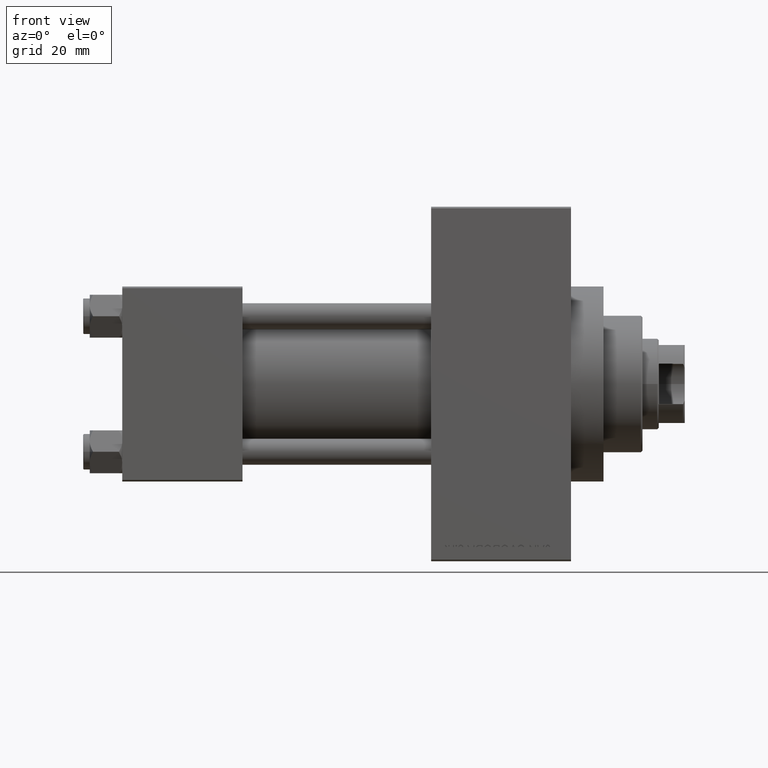
[diagram: clean part render]
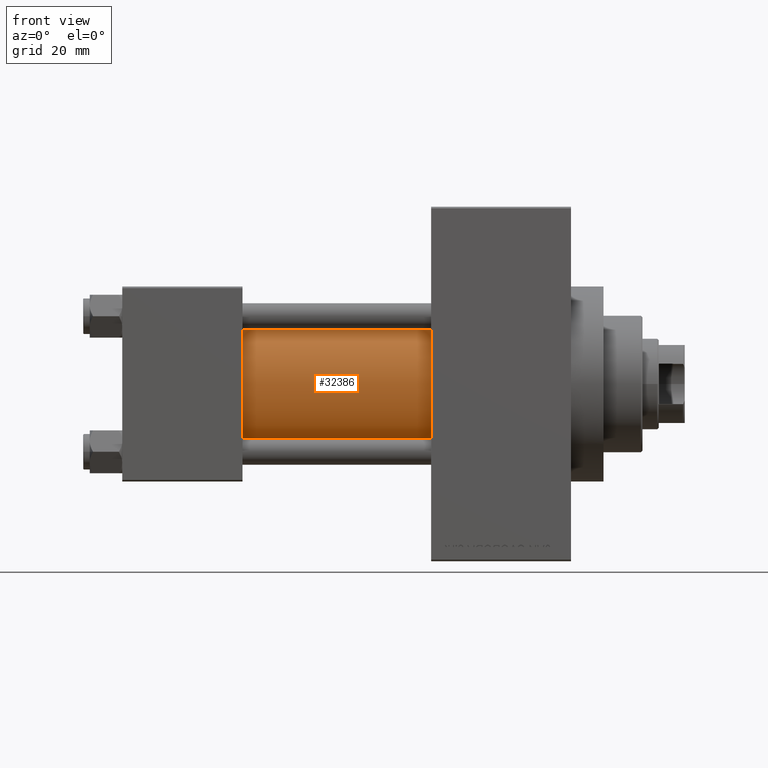
[diagram: same view with one face highlighted and labeled with its STEP entity id]
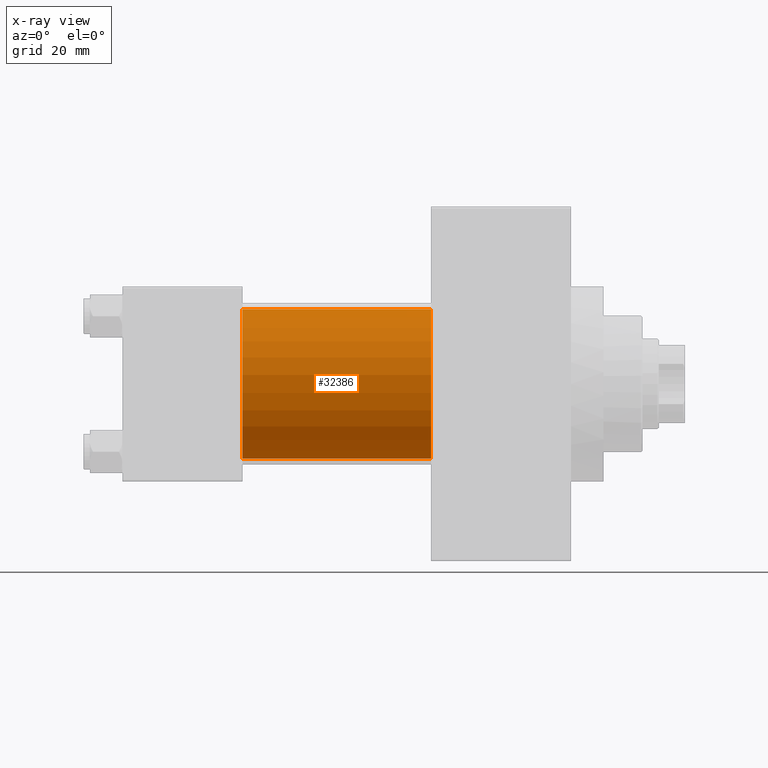
[diagram: x-ray of the same camera — body ghosted, the highlighted face saturated]
A machine part, front view. The second image highlights one B-rep face of the part: STEP entity #32386.
The next image is the same camera in x-ray: the body ghosted, the highlighted face saturated — about 0% of this face is hidden behind the body in this view.
In plain terms, the highlighted cylindrical surface (partial cylindrical patch) has radius 23 mm, axis along (-1, -0, -0).
Its self-contained STEP definition (entity closure, byte-faithful):
#1256 = DIRECTION ( 'NONE',  ( -1.000000000000000000, -0.000000000000000000, -0.000000000000000000 ) ) ;
#1341 = VERTEX_POINT ( 'NONE', #12690 ) ;
#1744 = CIRCLE ( 'NONE', #5731, 23.00000000000000000 ) ;
#2470 = ORIENTED_EDGE ( 'NONE', *, *, #42792, .T. ) ;
#2825 = VERTEX_POINT ( 'NONE', #7489 ) ;
#3212 = DIRECTION ( 'NONE',  ( 0.000000000000000000, 0.000000000000000000, 1.000000000000000000 ) ) ;
#4213 = AXIS2_PLACEMENT_3D ( 'NONE', #39566, #26118, #3212 ) ;
#5540 = ORIENTED_EDGE ( 'NONE', *, *, #46362, .F. ) ;
#5661 = VERTEX_POINT ( 'NONE', #40849 ) ;
#5731 = AXIS2_PLACEMENT_3D ( 'NONE', #25492, #33693, #25743 ) ;
#6108 = ORIENTED_EDGE ( 'NONE', *, *, #48759, .F. ) ;
#7390 = CARTESIAN_POINT ( 'NONE',  ( 95.00000000000000000, -2.602085213965210642E-15, 23.00000000000000000 ) ) ;
#7489 = CARTESIAN_POINT ( 'NONE',  ( 37.00000000000000000, -2.602085213965210642E-15, 23.00000000000000000 ) ) ;
#7628 = DIRECTION ( 'NONE',  ( -1.000000000000000000, -0.000000000000000000, -0.000000000000000000 ) ) ;
#11185 = EDGE_LOOP ( 'NONE', ( #6108, #5540, #2470, #16103 ) ) ;
#12490 = CARTESIAN_POINT ( 'NONE',  ( 95.00000000000000000, -2.602085213965210642E-15, 0.000000000000000000 ) ) ;
#12690 = CARTESIAN_POINT ( 'NONE',  ( 95.00000000000000000, -2.602085213965210642E-15, 23.00000000000000000 ) ) ;
#13199 = CARTESIAN_POINT ( 'NONE',  ( 95.00000000000000000, 2.146024240737012665E-16, -23.00000000000000000 ) ) ;
#14836 = DIRECTION ( 'NONE',  ( 0.000000000000000000, 0.000000000000000000, -1.000000000000000000 ) ) ;
#15084 = DIRECTION ( 'NONE',  ( 1.000000000000000000, 0.000000000000000000, 0.000000000000000000 ) ) ;
#15111 = LINE ( 'NONE', #7390, #26849 ) ;
#16103 = ORIENTED_EDGE ( 'NONE', *, *, #30768, .T. ) ;
#19952 = LINE ( 'NONE', #13199, #29445 ) ;
#24393 = CYLINDRICAL_SURFACE ( 'NONE', #4213, 23.00000000000000000 ) ;
#24571 = CIRCLE ( 'NONE', #42049, 23.00000000000000000 ) ;
#25492 = CARTESIAN_POINT ( 'NONE',  ( 37.00000000000000000, -2.602085213965210642E-15, 0.000000000000000000 ) ) ;
#25743 = DIRECTION ( 'NONE',  ( 0.000000000000000000, 0.000000000000000000, 1.000000000000000000 ) ) ;
#26118 = DIRECTION ( 'NONE',  ( -1.000000000000000000, -0.000000000000000000, -0.000000000000000000 ) ) ;
#26849 = VECTOR ( 'NONE', #7628, 1000.000000000000000 ) ;
#29445 = VECTOR ( 'NONE', #1256, 1000.000000000000000 ) ;
#30768 = EDGE_CURVE ( 'NONE', #2825, #5661, #1744, .T. ) ;
#32386 = ADVANCED_FACE ( 'NONE', ( #43305 ), #24393, .T. ) ;
#33693 = DIRECTION ( 'NONE',  ( 1.000000000000000000, -0.000000000000000000, 0.000000000000000000 ) ) ;
#38160 = VERTEX_POINT ( 'NONE', #47627 ) ;
#39566 = CARTESIAN_POINT ( 'NONE',  ( 95.00000000000000000, -2.602085213965210642E-15, 0.000000000000000000 ) ) ;
#40849 = CARTESIAN_POINT ( 'NONE',  ( 37.00000000000000000, 2.146024240737012665E-16, -23.00000000000000000 ) ) ;
#42049 = AXIS2_PLACEMENT_3D ( 'NONE', #12490, #15084, #14836 ) ;
#42792 = EDGE_CURVE ( 'NONE', #1341, #2825, #15111, .T. ) ;
#43305 = FACE_OUTER_BOUND ( 'NONE', #11185, .T. ) ;
#46362 = EDGE_CURVE ( 'NONE', #1341, #38160, #24571, .T. ) ;
#47627 = CARTESIAN_POINT ( 'NONE',  ( 95.00000000000000000, 2.146024240737012665E-16, -23.00000000000000000 ) ) ;
#48759 = EDGE_CURVE ( 'NONE', #38160, #5661, #19952, .T. ) ;